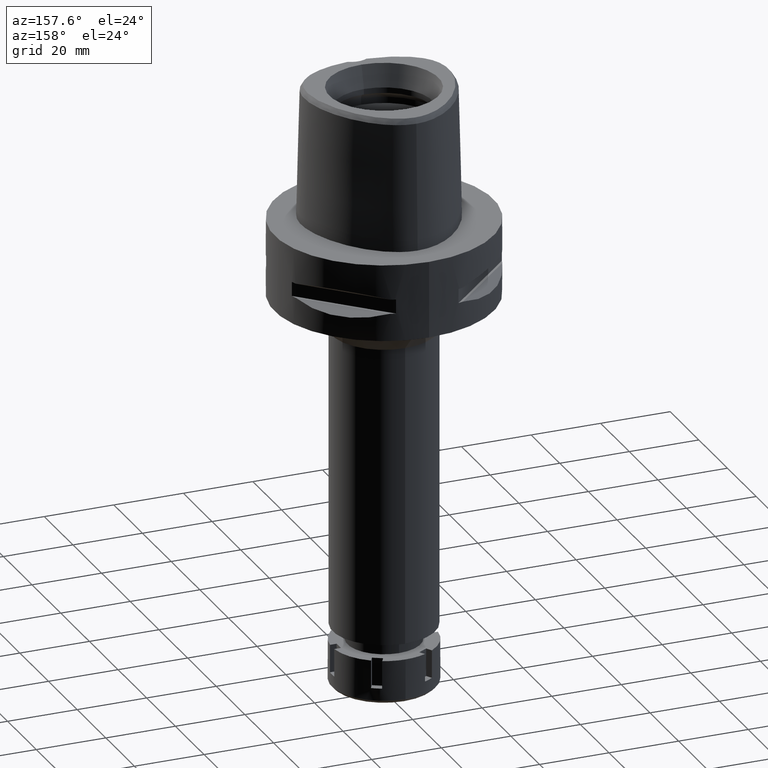
[diagram: clean part render]
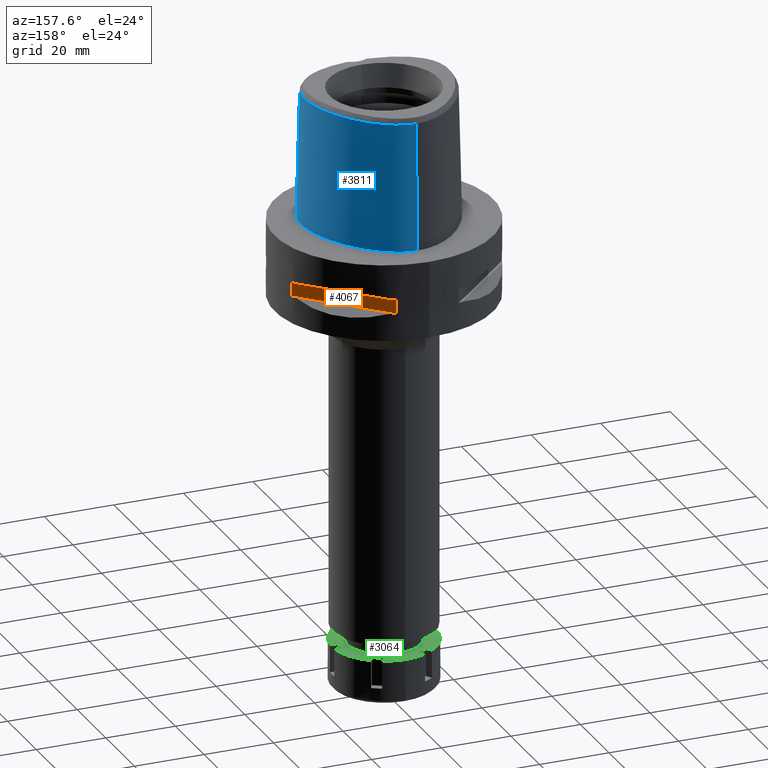
[diagram: same view with three faces highlighted in distinct colors, each labeled with its STEP entity id]
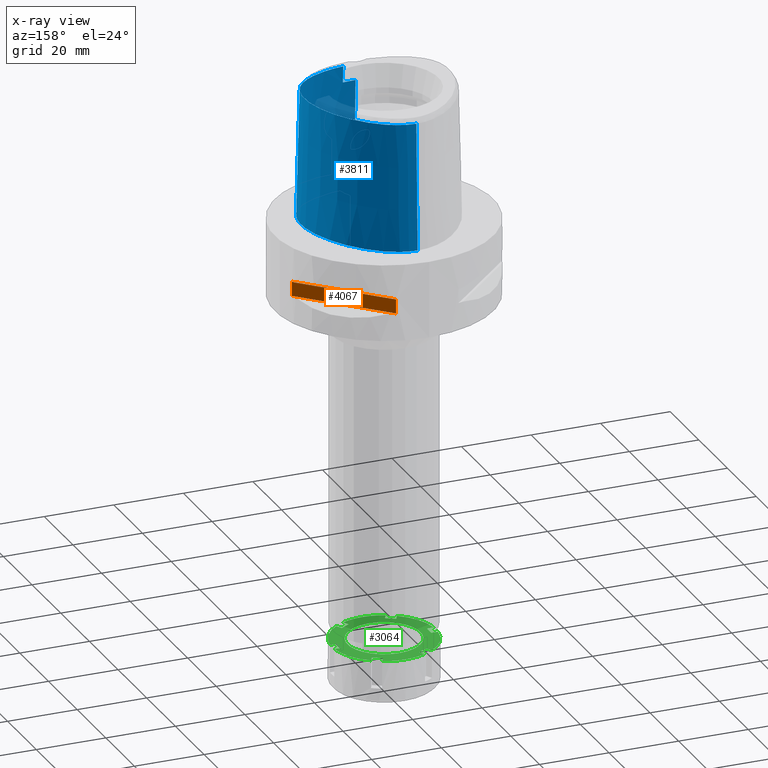
[diagram: x-ray of the same camera — body ghosted, the three highlighted faces saturated]
A machine part, auxiliary view with three faces highlighted in distinct colors.
The next image is the same camera in x-ray (body ghosted, the three faces saturated) — at least one of them is partly hidden behind the body in this view.
Their STEP definitions:

[orange] entity #4067 — the highlighted planar face has unit normal (-0.7071, -0.7071, 0).
#23 = EDGE_CURVE ( 'NONE', #1506, #1730, #2335, .T. ) ;
#52 = CARTESIAN_POINT ( 'NONE',  ( 5.444722215136000187, 33.72899346260000186, -9.950000000000001066 ) ) ;
#82 = CARTESIAN_POINT ( 'NONE',  ( 30.19251670572000279, 8.981198972019999616, -9.950000000000001066 ) ) ;
#102 = FACE_OUTER_BOUND ( 'NONE', #975, .T. ) ;
#261 = EDGE_CURVE ( 'NONE', #1730, #313, #1195, .T. ) ;
#313 = VERTEX_POINT ( 'NONE', #3755 ) ;
#329 = DIRECTION ( 'NONE',  ( 0.0000000000000000000, 0.0000000000000000000, 1.000000000000000000 ) ) ;
#378 = ORIENTED_EDGE ( 'NONE', *, *, #3391, .F. ) ;
#526 = VECTOR ( 'NONE', #4445, 1000.000000000000114 ) ;
#730 = VERTEX_POINT ( 'NONE', #82 ) ;
#843 = CARTESIAN_POINT ( 'NONE',  ( 30.19251670572000279, 8.981198972017999438, -9.950000000000001066 ) ) ;
#964 = EDGE_CURVE ( 'NONE', #730, #1506, #4099, .T. ) ;
#975 = EDGE_LOOP ( 'NONE', ( #378, #4939, #3832, #1363 ) ) ;
#1195 = LINE ( 'NONE', #3357, #3049 ) ;
#1211 = CARTESIAN_POINT ( 'NONE',  ( 30.19251670572000279, 8.981198972017999438, -9.950000000000001066 ) ) ;
#1363 = ORIENTED_EDGE ( 'NONE', *, *, #261, .T. ) ;
#1506 = VERTEX_POINT ( 'NONE', #4876 ) ;
#1631 = CARTESIAN_POINT ( 'NONE',  ( 8.981198972019999616, 30.19251670572000279, -14.05000000000000071 ) ) ;
#1730 = VERTEX_POINT ( 'NONE', #1631 ) ;
#1785 = DIRECTION ( 'NONE',  ( -0.7071067811865475727, -0.7071067811865475727, 0.0000000000000000000 ) ) ;
#2099 = DIRECTION ( 'NONE',  ( -0.7071067811865474617, 0.7071067811865474617, 0.0000000000000000000 ) ) ;
#2335 = LINE ( 'NONE', #4882, #526 ) ;
#3049 = VECTOR ( 'NONE', #329, 1000.000000000000000 ) ;
#3357 = CARTESIAN_POINT ( 'NONE',  ( 8.981198972017999438, 30.19251670572000279, -14.05000000000000071 ) ) ;
#3391 = EDGE_CURVE ( 'NONE', #730, #313, #3460, .T. ) ;
#3460 = LINE ( 'NONE', #843, #5004 ) ;
#3513 = DIRECTION ( 'NONE',  ( -0.7071067811865475727, 0.7071067811865475727, 0.0000000000000000000 ) ) ;
#3604 = VECTOR ( 'NONE', #4131, 1000.000000000000000 ) ;
#3755 = CARTESIAN_POINT ( 'NONE',  ( 8.981198972017999438, 30.19251670572000279, -9.950000000000001066 ) ) ;
#3832 = ORIENTED_EDGE ( 'NONE', *, *, #23, .T. ) ;
#4067 = ADVANCED_FACE ( 'NONE', ( #102 ), #4326, .F. ) ;
#4099 = LINE ( 'NONE', #1211, #3604 ) ;
#4105 = AXIS2_PLACEMENT_3D ( 'NONE', #52, #1785, #3513 ) ;
#4131 = DIRECTION ( 'NONE',  ( 0.0000000000000000000, 0.0000000000000000000, -1.000000000000000000 ) ) ;
#4326 = PLANE ( 'NONE',  #4105 ) ;
#4445 = DIRECTION ( 'NONE',  ( -0.7071067811865474617, 0.7071067811865474617, 0.0000000000000000000 ) ) ;
#4876 = CARTESIAN_POINT ( 'NONE',  ( 30.19251670572000279, 8.981198972017999438, -14.05000000000000071 ) ) ;
#4882 = CARTESIAN_POINT ( 'NONE',  ( 30.19251670572000279, 8.981198972017999438, -14.05000000000000071 ) ) ;
#4939 = ORIENTED_EDGE ( 'NONE', *, *, #964, .T. ) ;
#5004 = VECTOR ( 'NONE', #2099, 1000.000000000000114 ) ;

[blue] entity #3811 — the highlighted face is a freeform B-spline surface patch.
#96 = CARTESIAN_POINT ( 'NONE',  ( 0.2519697368789295400, -20.38876923348000147, 11.44999999999999929 ) ) ;
#111 = CARTESIAN_POINT ( 'NONE',  ( -0.6779734121400999847, -20.37023475736000222, 11.93048548580999935 ) ) ;
#120 = CARTESIAN_POINT ( 'NONE',  ( 2.714817435290670655, -20.25772213911185204, 12.49437854280265370 ) ) ;
#149 = CARTESIAN_POINT ( 'NONE',  ( 3.755991642143223785, -20.04748304465435993, 17.01495889863300448 ) ) ;
#169 = CARTESIAN_POINT ( 'NONE',  ( 6.288476565249999872, -20.00290563836000146, 11.93048548580999935 ) ) ;
#177 = CARTESIAN_POINT ( 'NONE',  ( 2.894506219204640907, -20.09690955887032970, 18.33274339089241778 ) ) ;
#178 = ORIENTED_EDGE ( 'NONE', *, *, #191, .T. ) ;
#185 = B_SPLINE_CURVE_WITH_KNOTS ( 'NONE', 3,
 ( #824, #1692, #1740, #410 ),
 .UNSPECIFIED., .F., .F.,
 ( 4, 4 ),
 ( 0.0000000000000000000, 1.000000000000000000 ),
 .UNSPECIFIED. ) ;
#191 = EDGE_CURVE ( 'NONE', #2306, #355, #5034, .T. ) ;
#196 = CARTESIAN_POINT ( 'NONE',  ( 2.041042029990999821E-08, -19.88004246002000031, 31.80000004972000127 ) ) ;
#199 = CARTESIAN_POINT ( 'NONE',  ( 19.40779762545000153, -12.64961922850999976, 11.93048548580999935 ) ) ;
#203 = CARTESIAN_POINT ( 'NONE',  ( 7.108589361577436705, 20.52412316394532255, 36.52186680739946212 ) ) ;
#206 = CARTESIAN_POINT ( 'NONE',  ( 3.437023659522963293, -20.17240543791107399, 13.35378256640227690 ) ) ;
#217 = CARTESIAN_POINT ( 'NONE',  ( -7.554234247045001308E-12, -20.67499999999999716, 5.943393925159998790E-14 ) ) ;
#232 = CARTESIAN_POINT ( 'NONE',  ( 11.13012652908999911, -18.61140108764999823, 11.93048548580999935 ) ) ;
#236 = CARTESIAN_POINT ( 'NONE',  ( 21.55524830777936529, -8.996025404796810676, -1.982772677002007239E-06 ) ) ;
#257 = CARTESIAN_POINT ( 'NONE',  ( -1.721500287542000227E-11, 22.56201468012000078, 36.52186680743999858 ) ) ;
#264 = CARTESIAN_POINT ( 'NONE',  ( 20.16779718557999601, 4.447573589357000756, 24.59140885849999947 ) ) ;
#274 = CARTESIAN_POINT ( 'NONE',  ( 4.050037399383525916, -20.04599349312467282, 15.75361975466950781 ) ) ;
#294 = CARTESIAN_POINT ( 'NONE',  ( 20.36546124962000093, -11.75800453467000040, -0.7304378868863000696 ) ) ;
#298 = CARTESIAN_POINT ( 'NONE',  ( 5.098437035785714500, 22.52602543684452385, -1.982772677002007239E-06 ) ) ;
#355 = VERTEX_POINT ( 'NONE', #440 ) ;
#359 = CARTESIAN_POINT ( 'NONE',  ( 4.563474861933999607E-11, 23.47499999999000053, 5.643633708511000158E-14 ) ) ;
#382 = CARTESIAN_POINT ( 'NONE',  ( 13.69241953403999901, 15.03666369974000006, 37.25233223120000048 ) ) ;
#405 = CARTESIAN_POINT ( 'NONE',  ( 2.438150570755999613, 22.68791623671000224, 24.59140885849999947 ) ) ;
#410 = CARTESIAN_POINT ( 'NONE',  ( 0.0000000000000000000, -20.18628283968999781, 19.55000000000000071 ) ) ;
#440 = CARTESIAN_POINT ( 'NONE',  ( 4.563474861933999607E-11, 23.47499999999000053, 5.643633708511000158E-14 ) ) ;
#452 = CARTESIAN_POINT ( 'NONE',  ( 2.758179676623465415, -20.25337897196574133, 12.53390918841284929 ) ) ;
#528 = CARTESIAN_POINT ( 'NONE',  ( 14.67337966880801758, -17.21410160570154702, -1.982772677002007239E-06 ) ) ;
#555 = FACE_OUTER_BOUND ( 'NONE', #2101, .T. ) ;
#558 = CARTESIAN_POINT ( 'NONE',  ( 18.56841068752517643, -14.16937991701447963, -1.982772677002007239E-06 ) ) ;
#563 = CARTESIAN_POINT ( 'NONE',  ( 1.222756221967138623, -20.36284569854003124, 11.63840396453693238 ) ) ;
#586 = CARTESIAN_POINT ( 'NONE',  ( 3.328551379740161575, -20.18727222456297099, 13.19186960083930593 ) ) ;
#621 = CARTESIAN_POINT ( 'NONE',  ( 4.026067555606401172, -20.04243146964171274, 16.01312629722099956 ) ) ;
#643 = CARTESIAN_POINT ( 'NONE',  ( 6.175998540514000545, -19.37631760546999971, 37.25233223120000048 ) ) ;
#647 = CARTESIAN_POINT ( 'NONE',  ( 0.7901461619515394164, 22.56201467849281173, 36.52186680739946212 ) ) ;
#651 = CARTESIAN_POINT ( 'NONE',  ( 2.520050460813455295, -20.11738995382102857, 18.67115940201987812 ) ) ;
#670 = CARTESIAN_POINT ( 'NONE',  ( 21.13154853792999788, -6.714587027493000626, 37.25233223120000048 ) ) ;
#673 = CARTESIAN_POINT ( 'NONE',  ( 22.05732879250008693, -6.847636725831053539, -1.982772677002007239E-06 ) ) ;
#692 = ORIENTED_EDGE ( 'NONE', *, *, #3813, .F. ) ;
#704 = CARTESIAN_POINT ( 'NONE',  ( 21.99640702107999957, -0.2778990153195000090, -0.7304378868863000696 ) ) ;
#708 = CARTESIAN_POINT ( 'NONE',  ( 14.22011350746535641, -16.41829354687963161, 36.52186680739946212 ) ) ;
#712 = CARTESIAN_POINT ( 'NONE',  ( 3.644654988697594522, -20.14185568960482087, 13.73169098995894544 ) ) ;
#734 = CARTESIAN_POINT ( 'NONE',  ( 1.886855603546999882, -20.71358920058000308, -0.7304378868863000696 ) ) ;
#760 = CARTESIAN_POINT ( 'NONE',  ( 14.21104783614000056, -16.40237677454000220, 37.25233223120000048 ) ) ;
#824 = CARTESIAN_POINT ( 'NONE',  ( 2.041042029990999821E-08, -19.88004246002000031, 31.80000004972000127 ) ) ;
#845 = CARTESIAN_POINT ( 'NONE',  ( 2.373090252712999781, 22.37624316056000140, 37.25233223120000048 ) ) ;
#883 = CARTESIAN_POINT ( 'NONE',  ( 1.488028627205765453, -20.35026873354180665, 11.73319909950361328 ) ) ;
#891 = CARTESIAN_POINT ( 'NONE',  ( 7.259695350511000456, 20.78233549784000189, 24.59140885849999947 ) ) ;
#907 = CARTESIAN_POINT ( 'NONE',  ( 3.042491796687317063, -20.22274507510631736, 12.82354767343091062 ) ) ;
#967 = EDGE_CURVE ( 'NONE', #5182, #2306, #2445, .T. ) ;
#986 = CARTESIAN_POINT ( 'NONE',  ( 11.23259758430813626, -18.89324223433851202, -1.982772677002007239E-06 ) ) ;
#995 = CARTESIAN_POINT ( 'NONE',  ( 1.946611601997332519, -20.32311006286645494, 11.93862046598738580 ) ) ;
#1020 = CARTESIAN_POINT ( 'NONE',  ( 2.871987183428478474, -20.09819914941969898, 18.35556622516750025 ) ) ;
#1039 = ORIENTED_EDGE ( 'NONE', *, *, #1512, .T. ) ;
#1046 = CARTESIAN_POINT ( 'NONE',  ( 1.675120599120962783, -20.15532933629874890, 19.18749499249619461 ) ) ;
#1071 = CARTESIAN_POINT ( 'NONE',  ( 19.15132510044000114, -12.46323140722999945, 24.59140885849999947 ) ) ;
#1082 = CARTESIAN_POINT ( 'NONE',  ( 1.027682876504597553, -20.17741712424493272, 19.45809765211911468 ) ) ;
#1098 = CARTESIAN_POINT ( 'NONE',  ( 20.07948471642000143, -10.22500054806000058, 37.25233223120000048 ) ) ;
#1102 = CARTESIAN_POINT ( 'NONE',  ( 20.09619608768924692, -10.23243839429691171, 36.52186680739946212 ) ) ;
#1107 = CARTESIAN_POINT ( 'NONE',  ( 1.613182323480255365, -20.15753140428501311, 19.21500890072887557 ) ) ;
#1127 = CARTESIAN_POINT ( 'NONE',  ( 21.26836734729999989, -8.910752225254999104, 11.93048548580999935 ) ) ;
#1131 = CARTESIAN_POINT ( 'NONE',  ( 21.07429999882485561, -0.4408303635841404056, 36.52186680739946212 ) ) ;
#1134 = CARTESIAN_POINT ( 'NONE',  ( 2.144427845708295255, -20.13626349860851761, 18.93810770242787456 ) ) ;
#1161 = CARTESIAN_POINT ( 'NONE',  ( 18.08416038769000167, 10.44089487473999966, -0.7304378868863000696 ) ) ;
#1165 = CARTESIAN_POINT ( 'NONE',  ( 13.70645019738733339, 15.04851265230653290, 36.52186680739946212 ) ) ;
#1192 = CARTESIAN_POINT ( 'NONE',  ( 22.26285557058000109, -4.100361500018000704, -0.7304378868863000696 ) ) ;
#1245 = CARTESIAN_POINT ( 'NONE',  ( 7.420053096645999879, 21.05635738262000345, 11.93048548580999935 ) ) ;
#1273 = CARTESIAN_POINT ( 'NONE',  ( 4.868968358529999207, 21.95285521843999987, 24.59140885849999947 ) ) ;
#1331 = CARTESIAN_POINT ( 'NONE',  ( 2.853007646188343127, -20.24348516854156443, 12.62547111175711301 ) ) ;
#1354 = CARTESIAN_POINT ( 'NONE',  ( 1.511996643077539559, -20.34900293593732101, 11.74281483622965361 ) ) ;
#1428 = CARTESIAN_POINT ( 'NONE',  ( -0.4561077450354999452, -20.69106756138000236, -0.7304378868863000696 ) ) ;
#1438 = CARTESIAN_POINT ( 'NONE',  ( 4.002664568992801541, -20.07397280446608789, 14.86850854358316631 ) ) ;
#1464 = CARTESIAN_POINT ( 'NONE',  ( 2.305334229541141422, -20.12831948498808998, 18.83048013503183427 ) ) ;
#1485 = CARTESIAN_POINT ( 'NONE',  ( 14.42198652399999936, 15.65278600588999858, -0.7304378868863000696 ) ) ;
#1493 = CARTESIAN_POINT ( 'NONE',  ( 3.128678969656458086, -20.08334280844291442, 18.07279819847896718 ) ) ;
#1512 = EDGE_CURVE ( 'NONE', #2955, #4812, #1759, .T. ) ;
#1514 = CARTESIAN_POINT ( 'NONE',  ( 11.23887130431000081, -18.91049776503999880, -0.7304378868863000696 ) ) ;
#1545 = ORIENTED_EDGE ( 'NONE', *, *, #5020, .F. ) ;
#1546 = CARTESIAN_POINT ( 'NONE',  ( 20.65879041440999941, -10.48283616408000007, 11.93048548580999935 ) ) ;
#1554 = CARTESIAN_POINT ( 'NONE',  ( 3.787426346252618092, -20.04607170149531825, 16.93525315949890242 ) ) ;
#1572 = CARTESIAN_POINT ( 'NONE',  ( 20.76670355404000290, 4.663413655761000420, -0.7304378868863000696 ) ) ;
#1581 = CARTESIAN_POINT ( 'NONE',  ( -9.438382639363001303E-13, -20.38876923348000147, 11.44999999999999929 ) ) ;
#1598 = CARTESIAN_POINT ( 'NONE',  ( -9.438382639363001303E-13, -20.38876923348000147, 11.44999999999999929 ) ) ;
#1606 = CARTESIAN_POINT ( 'NONE',  ( 20.09084467263999940, -11.59945457943000058, 11.93048548580999935 ) ) ;
#1610 = CARTESIAN_POINT ( 'NONE',  ( 7.300578979384598988, -19.07170738130932008, 36.52186680739946212 ) ) ;
#1686 = CARTESIAN_POINT ( 'NONE',  ( -0.4558512611212000021, 22.85344955503000364, 24.59140885849999947 ) ) ;
#1692 = CARTESIAN_POINT ( 'NONE',  ( 6.820927657154836449E-09, -19.98212988583318861, 27.71666688228307507 ) ) ;
#1736 = CARTESIAN_POINT ( 'NONE',  ( 10.75753574149999814, 19.18839676150999907, -0.7304378868863000696 ) ) ;
#1740 = CARTESIAN_POINT ( 'NONE',  ( 6.840928000218181351E-09, -20.08420636276216698, 23.63333344114142776 ) ) ;
#1759 = B_SPLINE_CURVE_WITH_KNOTS ( 'NONE', 3,
 ( #2329, #4076, #4046, #196 ),
 .UNSPECIFIED., .F., .F.,
 ( 4, 4 ),
 ( 0.0000000000000000000, 1.000000000000000000 ),
 .UNSPECIFIED. ) ;
#1830 = CARTESIAN_POINT ( 'NONE',  ( -9.438382639363001303E-13, -20.38876923348000147, 11.44999999999999929 ) ) ;
#1890 = CARTESIAN_POINT ( 'NONE',  ( 3.686910441658101334, -20.13511169296123171, 13.82359477180977514 ) ) ;
#1892 = B_SPLINE_CURVE_WITH_KNOTS ( 'NONE', 3,
 ( #3214, #647, #2364, #3670, #203, #5392, #1165, #1940, #5363, #1131, #3756, #3296, #4999, #1102, #2819, #2845, #4564, #5445, #708, #2881, #1610, #2618, #3840 ),
 .UNSPECIFIED., .F., .F.,
 ( 4, 1, 1, 1, 1, 1, 1, 1, 1, 1, 1, 1, 1, 1, 1, 1, 1, 1, 1, 1, 4 ),
 ( 0.0000000000000000000, 0.04382683003322091625, 0.08765366006602096083, 0.1314804900989263448, 0.1753073201318317287, 0.2629609801974319150, 0.3506146402631374892, 0.4382683003289481460, 0.5259219603945484156, 0.5697487904274537440, 0.6135756204602539343, 0.6574024504931592627, 0.6793158655095592469, 0.7012292805259594530, 0.7231426955423594372, 0.7450561105587595323, 0.7888829405916648607, 0.8327097706245703002, 0.8765366006573702684, 0.9641902607230863342, 1.000000000000000000 ),
 .UNSPECIFIED. ) ;
#1909 = CARTESIAN_POINT ( 'NONE',  ( -0.4439347079955999753, -19.74161805981999862, 37.25233223120000048 ) ) ;
#1917 = CARTESIAN_POINT ( 'NONE',  ( 2.880386059684365119, -20.09771851976561408, 18.34709984349601442 ) ) ;
#1935 = CARTESIAN_POINT ( 'NONE',  ( 6.344715577618000424, -20.31619965479999834, -0.7304378868863000696 ) ) ;
#1940 = CARTESIAN_POINT ( 'NONE',  ( 17.27359236349095539, 9.972912859139521302, 36.52186680739946212 ) ) ;
#1945 = CARTESIAN_POINT ( 'NONE',  ( 3.765593220700957033, -20.04704214534180906, 16.99108095766526105 ) ) ;
#1969 = CARTESIAN_POINT ( 'NONE',  ( 18.58171406964000028, -14.18198046908000087, -0.7304378868863000696 ) ) ;
#1996 = CARTESIAN_POINT ( 'NONE',  ( 19.86834400134999967, 4.339653556154000391, 37.25233223120000048 ) ) ;
#2024 = CARTESIAN_POINT ( 'NONE',  ( 17.53318563715999900, 10.12278921723000025, 24.59140885849999947 ) ) ;
#2083 = CARTESIAN_POINT ( 'NONE',  ( 10.14358053404999893, 18.45723391293999782, 37.25233223120000048 ) ) ;
#2101 = EDGE_LOOP ( 'NONE', ( #4255, #4551, #692, #1039, #4977, #1545, #4229, #178 ) ) ;
#2105 = CARTESIAN_POINT ( 'NONE',  ( 3.704239288984441103, -19.64128042389065598, 33.37395322129999897 ) ) ;
#2130 = CARTESIAN_POINT ( 'NONE',  ( -0.4431573288724999782, 22.53713844853000126, 37.25233223120000048 ) ) ;
#2176 = CARTESIAN_POINT ( 'NONE',  ( 2.808608589973276892, -20.24816661311868771, 12.58196638594417927 ) ) ;
#2282 = CARTESIAN_POINT ( 'NONE',  ( 2.570081009083879486, -20.27170108689808714, 12.36908902939326715 ) ) ;
#2306 = VERTEX_POINT ( 'NONE', #217 ) ;
#2313 = CARTESIAN_POINT ( 'NONE',  ( 3.727121516744339669, -20.12854809717472548, 13.91496385434323102 ) ) ;
#2329 = CARTESIAN_POINT ( 'NONE',  ( 3.736696120837999402, -19.67778323291999953, 31.80000004972999861 ) ) ;
#2343 = CARTESIAN_POINT ( 'NONE',  ( 3.860403433738069712, -20.04330035600995785, 16.72651338064444104 ) ) ;
#2360 = CARTESIAN_POINT ( 'NONE',  ( 16.57726025046999752, -15.19304450529000050, 24.59140885849999947 ) ) ;
#2364 = CARTESIAN_POINT ( 'NONE',  ( 2.376843874103672150, 22.39422497744283191, 36.52186680739946212 ) ) ;
#2367 = CARTESIAN_POINT ( 'NONE',  ( 3.504989208434857950, -20.16277707621795656, 13.46647361527179854 ) ) ;
#2388 = CARTESIAN_POINT ( 'NONE',  ( 11.02138175388000008, -18.31230441026000122, 24.59140885849999947 ) ) ;
#2399 = CARTESIAN_POINT ( 'NONE',  ( 3.714384130523797456, -20.13065104887485290, 13.88538127571118785 ) ) ;
#2423 = CARTESIAN_POINT ( 'NONE',  ( 21.68301093871999896, -0.3332744164474999993, 11.93048548580999935 ) ) ;
#2432 = CARTESIAN_POINT ( 'NONE',  ( 1.583085234474576941, -20.15857747892415830, 19.22794739783265427 ) ) ;
#2445 = LINE ( 'NONE', #1598, #2612 ) ;
#2452 = CARTESIAN_POINT ( 'NONE',  ( 1.853272112111999936, -20.08023966506999969, 24.59140885849999947 ) ) ;
#2476 = CARTESIAN_POINT ( 'NONE',  ( 21.31039798484999892, -4.105938499058999547, 37.25233223120000048 ) ) ;
#2503 = VECTOR ( 'NONE', #5213, 999.9999999999998863 ) ;
#2511 = CARTESIAN_POINT ( 'NONE',  ( 19.64947369879755712, -12.82525393544401027, -1.982772677002007239E-06 ) ) ;
#2536 = CARTESIAN_POINT ( 'NONE',  ( 10.34823226986999956, 18.70095486246000149, 24.59140885849999947 ) ) ;
#2561 = CARTESIAN_POINT ( 'NONE',  ( 0.5826623201546999864, 22.88447422702000011, 24.59140885849999947 ) ) ;
#2604 = CARTESIAN_POINT ( 'NONE',  ( 2.396851615580248840, -20.28741283536881213, 12.23208293719574691 ) ) ;
#2612 = VECTOR ( 'NONE', #3320, 1000.000000000000114 ) ;
#2618 = CARTESIAN_POINT ( 'NONE',  ( 4.467522181836583783, -19.48130276147515616, 36.52186680739946212 ) ) ;
#2629 = CARTESIAN_POINT ( 'NONE',  ( 3.169150985202763504, -20.20760989054315360, 12.97742286930309419 ) ) ;
#2675 = CARTESIAN_POINT ( 'NONE',  ( 2.113823676014076280, -20.67500004956444926, -1.982772677002007239E-06 ) ) ;
#2731 = CARTESIAN_POINT ( 'NONE',  ( 1.767192251251786139, -20.15197845540285826, 19.14519926632055302 ) ) ;
#2759 = EDGE_CURVE ( 'NONE', #3212, #4572, #1892, .T. ) ;
#2764 = CARTESIAN_POINT ( 'NONE',  ( 3.003234361615559678, -20.09064592609334454, 18.21745801850492086 ) ) ;
#2782 = CARTESIAN_POINT ( 'NONE',  ( 20.65947724667000429, -8.729764282430000577, 37.25233223120000048 ) ) ;
#2795 = CARTESIAN_POINT ( 'NONE',  ( 4.049643110176807781, -20.05399160878188169, 15.43795828973407680 ) ) ;
#2798 = EDGE_CURVE ( 'NONE', #4812, #3361, #185, .T. ) ;
#2814 = CARTESIAN_POINT ( 'NONE',  ( 20.96392229697999809, -8.820258253843000773, 24.59140885849999947 ) ) ;
#2819 = CARTESIAN_POINT ( 'NONE',  ( 19.55745538001470152, -11.29150212658102959, 36.52186680739946212 ) ) ;
#2824 = CARTESIAN_POINT ( 'NONE',  ( 3.749536200694282506, -20.04778253193092397, 17.03086640830614229 ) ) ;
#2841 = CARTESIAN_POINT ( 'NONE',  ( 21.44619279071000051, -6.759806530403999147, 24.59140885849999947 ) ) ;
#2844 = CARTESIAN_POINT ( 'NONE',  ( 20.34961802856998148, -11.74885744669750665, -1.982772677002007239E-06 ) ) ;
#2845 = CARTESIAN_POINT ( 'NONE',  ( 18.90964962508263625, -12.28759713487958294, 36.52186680739946212 ) ) ;
#2851 = CARTESIAN_POINT ( 'NONE',  ( 2.032175996666464091, -20.14130468680087560, 19.00576489869021302 ) ) ;
#2875 = CARTESIAN_POINT ( 'NONE',  ( 1.870063857829999954, -20.39691443282999828, 11.93048548580999935 ) ) ;
#2881 = CARTESIAN_POINT ( 'NONE',  ( 10.91891095221612851, -18.03046396093296266, 36.52186680739946212 ) ) ;
#2905 = CARTESIAN_POINT ( 'NONE',  ( 14.68244497377000002, -17.23001773481000143, -0.7304378868863000696 ) ) ;
#2955 = VERTEX_POINT ( 'NONE', #4257 ) ;
#2961 = CARTESIAN_POINT ( 'NONE',  ( 0.6155340743096999745, 23.51883498273999962, -0.7304378868863000696 ) ) ;
#2987 = CARTESIAN_POINT ( 'NONE',  ( 4.987110638285000341, 22.24795273284000174, 11.93048548580999935 ) ) ;
#3048 = CARTESIAN_POINT ( 'NONE',  ( 2.282207029746515126, -20.29700151028869470, 12.15162930637090177 ) ) ;
#3109 = LINE ( 'NONE', #4816, #2503 ) ;
#3162 = CARTESIAN_POINT ( 'NONE',  ( 3.346444325172779788, -20.07049246070072002, 17.78503332969415140 ) ) ;
#3190 = CARTESIAN_POINT ( 'NONE',  ( 3.599362307492320223, -20.14875877779048352, 13.64217581387225842 ) ) ;
#3207 = CARTESIAN_POINT ( 'NONE',  ( 14.17879752734999954, 15.44741190383999907, 11.93048548580999935 ) ) ;
#3212 = VERTEX_POINT ( 'NONE', #257 ) ;
#3214 = CARTESIAN_POINT ( 'NONE',  ( -1.721500287542000227E-11, 22.56201468012000078, 36.52186680743999858 ) ) ;
#3223 = CARTESIAN_POINT ( 'NONE',  ( 2.963657114686568228, -20.09293563006363925, 18.26079471621887507 ) ) ;
#3240 = CARTESIAN_POINT ( 'NONE',  ( 19.81622809565999788, -11.44090462417999987, 24.59140885849999947 ) ) ;
#3264 = CARTESIAN_POINT ( 'NONE',  ( 20.36913756540999998, -10.35391835607000033, 24.59140885849999947 ) ) ;
#3267 = CARTESIAN_POINT ( 'NONE',  ( 0.8548392458207098032, 23.47500004957299424, -1.982772677002007239E-06 ) ) ;
#3272 = CARTESIAN_POINT ( 'NONE',  ( 3.664274183418350095, -20.05181531545110474, 17.23726368441675305 ) ) ;
#3292 = CARTESIAN_POINT ( 'NONE',  ( 20.46725036981000301, 4.555493622559000144, 11.93048548580999935 ) ) ;
#3296 = CARTESIAN_POINT ( 'NONE',  ( 21.14970177531148110, -6.717195943318931661, 36.52186680739946212 ) ) ;
#3320 = DIRECTION ( 'NONE',  ( -5.771468541057828828E-13, -0.02499051295389925070, -0.9996876883618708298 ) ) ;
#3325 = CARTESIAN_POINT ( 'NONE',  ( 17.88993632181999871, -13.52674998306000020, 37.25233223120000048 ) ) ;
#3361 = VERTEX_POINT ( 'NONE', #3690 ) ;
#3380 = CARTESIAN_POINT ( 'NONE',  ( 7.099337604376000144, 20.50831361306999767, 37.25233223120000048 ) ) ;
#3415 = CARTESIAN_POINT ( 'NONE',  ( 4.750826078775999939, 21.65775770404999889, 37.25233223120000048 ) ) ;
#3463 = CARTESIAN_POINT ( 'NONE',  ( 3.637738219117000238, -19.56971420299000286, 36.52185956443999970 ) ) ;
#3475 = CARTESIAN_POINT ( 'NONE',  ( 1.319600680390206060, -20.35863312411228065, 11.66994494017185602 ) ) ;
#3504 = CARTESIAN_POINT ( 'NONE',  ( 2.830175095661752405, -20.24590160278925310, 12.60298252333814339 ) ) ;
#3559 = CARTESIAN_POINT ( 'NONE',  ( 1.028701314430662928, -20.37062275902202302, 11.58049741886265238 ) ) ;
#3582 = CARTESIAN_POINT ( 'NONE',  ( -0.6718836805590999717, -20.05378834563000012, 24.59140885849999947 ) ) ;
#3618 = CARTESIAN_POINT ( 'NONE',  ( 3.745459306425695800, -20.04797394566474722, 17.04080371184679166 ) ) ;
#3635 = CARTESIAN_POINT ( 'NONE',  ( 20.94844326341000240, -10.61175397210000071, -0.7304378868863000696 ) ) ;
#3640 = B_SPLINE_CURVE_WITH_KNOTS ( 'NONE', 3,
 ( #4253, #2105, #4643, #3463 ),
 .UNSPECIFIED., .F., .F.,
 ( 4, 4 ),
 ( 0.0000000000000000000, 1.000000000000000000 ),
 .UNSPECIFIED. ) ;
#3644 = CARTESIAN_POINT ( 'NONE',  ( 3.828814954410813876, -20.04436409866677948, 16.82317999465184144 ) ) ;
#3664 = CARTESIAN_POINT ( 'NONE',  ( 1.836480366395000008, -19.76356489732000199, 37.25233223120000048 ) ) ;
#3669 = CARTESIAN_POINT ( 'NONE',  ( -7.554234247045001308E-12, -20.67499999999999716, 5.943393925159998790E-14 ) ) ;
#3670 = CARTESIAN_POINT ( 'NONE',  ( 4.757642236484951326, 21.67478320247267476, 36.52186680739946212 ) ) ;
#3677 = CARTESIAN_POINT ( 'NONE',  ( 1.856701250897948796, -20.14848423775751129, 19.09993988373318885 ) ) ;
#3690 = CARTESIAN_POINT ( 'NONE',  ( 0.0000000000000000000, -20.18628283968999781, 19.55000000000000071 ) ) ;
#3696 = CARTESIAN_POINT ( 'NONE',  ( 18.35112148704000035, -13.96357030707000035, 11.93048548580999935 ) ) ;
#3709 = CARTESIAN_POINT ( 'NONE',  ( 4.048221369819505533, -20.05572751809214438, 15.37605551826763239 ) ) ;
#3724 = CARTESIAN_POINT ( 'NONE',  ( 14.36818021534999978, -16.67825709462999839, 24.59140885849999947 ) ) ;
#3734 = B_SPLINE_SURFACE_WITH_KNOTS ( 'NONE', 3, 3, ( 
 ( #3991, #111, #3582, #5276 ),
 ( #1428, #4856, #4109, #1909 ),
 ( #734, #2875, #2452, #3664 ),
 ( #1935, #169, #5329, #643 ),
 ( #1514, #232, #2388, #5439 ),
 ( #2905, #4171, #3724, #760 ),
 ( #3752, #5359, #2360, #4911 ),
 ( #1969, #3696, #4078, #3325 ),
 ( #5388, #199, #1071, #5413 ),
 ( #294, #1606, #3240, #4941 ),
 ( #3635, #1546, #3264, #1098 ),
 ( #4969, #1127, #2814, #2782 ),
 ( #5028, #4995, #2841, #670 ),
 ( #1192, #4529, #4558, #2476 ),
 ( #704, #2423, #4140, #4498 ),
 ( #1572, #3292, #264, #1996 ),
 ( #1161, #4591, #2024, #4618 ),
 ( #1485, #3207, #3812, #382 ),
 ( #1736, #3784, #2536, #2083 ),
 ( #4696, #1245, #891, #3380 ),
 ( #5114, #2987, #1273, #3415 ),
 ( #4302, #4196, #405, #845 ),
 ( #2961, #3883, #2561, #4274 ),
 ( #5521, #5470, #1686, #2130 ),
 ( #5055, #3861, #5552, #5497 ) ),
 .UNSPECIFIED., .F., .F., .F.,
 ( 4, 1, 1, 1, 1, 1, 1, 1, 1, 1, 1, 1, 1, 1, 1, 1, 1, 1, 1, 1, 1, 1, 4 ),
 ( 4, 4 ),
 ( -0.008985960173574000093, 0.0000000000000000000, 0.08333333333339000559, 0.1666666666667000196, 0.2083333333333000081, 0.2500000000000000000, 0.2916666666666999919, 0.3125000000000000000, 0.3333333333333000081, 0.3541666666666000163, 0.3749999999998999689, 0.4166666666666000163, 0.4583333333332000326, 0.4999999999998999689, 0.5833333333331000015, 0.6666666666664999852, 0.7499999999998000488, 0.8333333333329999704, 0.8749999999997000177, 0.9166666666664000651, 0.9583333333329999704, 1.000000000000000000, 1.011710456763000199 ),
 ( -4.254415840453999687E-09, 1.000000216975000189 ),
 .UNSPECIFIED. ) ;
#3752 = CARTESIAN_POINT ( 'NONE',  ( 16.97022731431999887, -15.69280483524000047, -0.7304378868863000696 ) ) ;
#3756 = CARTESIAN_POINT ( 'NONE',  ( 21.32871516740011586, -4.105831245034224253, 36.52186680739946212 ) ) ;
#3784 = CARTESIAN_POINT ( 'NONE',  ( 10.55288400567999929, 18.94467581198999540, 11.93048548580999935 ) ) ;
#3811 = ADVANCED_FACE ( 'NONE', ( #555 ), #3734, .T. ) ;
#3812 = CARTESIAN_POINT ( 'NONE',  ( 13.93560853070000150, 15.24203780179000134, 24.59140885849999947 ) ) ;
#3813 = EDGE_CURVE ( 'NONE', #2955, #4572, #3640, .T. ) ;
#3816 = CARTESIAN_POINT ( 'NONE',  ( 20.93173256748282185, -10.60431642644196515, -1.982772677002007239E-06 ) ) ;
#3840 = CARTESIAN_POINT ( 'NONE',  ( 3.637738219117000238, -19.56971420299000286, 36.52185956443999970 ) ) ;
#3861 = CARTESIAN_POINT ( 'NONE',  ( -0.7025952812408999826, 23.15559737518000105, 11.93048548580999935 ) ) ;
#3883 = CARTESIAN_POINT ( 'NONE',  ( 0.5990981972322000360, 23.20165460487999809, 11.93048548580999935 ) ) ;
#3894 = CARTESIAN_POINT ( 'NONE',  ( 2.844541275134908176, -20.24438467540247544, 12.61708719066252193 ) ) ;
#3914 = CARTESIAN_POINT ( 'NONE',  ( 1.734379789055714660, -20.33697246834248418, 11.83436638252596573 ) ) ;
#3941 = CARTESIAN_POINT ( 'NONE',  ( 3.637738219117000238, -19.56971420299000286, 36.52185956443999970 ) ) ;
#3991 = CARTESIAN_POINT ( 'NONE',  ( -0.6840631437212000288, -20.68668116909000076, -0.7304378868863000696 ) ) ;
#4000 = CARTESIAN_POINT ( 'NONE',  ( 2.628027080903245327, -20.26624238139268286, 12.41747670475429111 ) ) ;
#4030 = CARTESIAN_POINT ( 'NONE',  ( 4.020738798819311732, -20.06858537622277083, 14.99755720161237349 ) ) ;
#4046 = CARTESIAN_POINT ( 'NONE',  ( 1.251533272182160372, -19.88005341395237835, 31.80000012137768906 ) ) ;
#4059 = CARTESIAN_POINT ( 'NONE',  ( 3.918456791373615022, -20.04170609324362218, 16.53266420031105000 ) ) ;
#4064 = EDGE_CURVE ( 'NONE', #3212, #355, #3109, .T. ) ;
#4076 = CARTESIAN_POINT ( 'NONE',  ( 2.503154195451533948, -19.81241979350761895, 31.80000012137768906 ) ) ;
#4078 = CARTESIAN_POINT ( 'NONE',  ( 18.12052890442999953, -13.74516014507000072, 24.59140885849999947 ) ) ;
#4087 = CARTESIAN_POINT ( 'NONE',  ( 2.673904828757554863, -20.10928166633813063, 18.54472627324816969 ) ) ;
#4109 = CARTESIAN_POINT ( 'NONE',  ( -0.4479923870088999838, -20.05810122700999898, 24.59140885849999947 ) ) ;
#4114 = CARTESIAN_POINT ( 'NONE',  ( 18.06826692841348247, 10.43171877491243471, -1.982772677002007239E-06 ) ) ;
#4121 = CARTESIAN_POINT ( 'NONE',  ( 2.467729343595080227, -20.12009802658496227, 18.71204267792693088 ) ) ;
#4140 = CARTESIAN_POINT ( 'NONE',  ( 21.36961485635000102, -0.3886498175754999895, 24.59140885849999947 ) ) ;
#4153 = CARTESIAN_POINT ( 'NONE',  ( 4.045013207771214425, -20.05847505277925080, 15.28275217491512628 ) ) ;
#4171 = CARTESIAN_POINT ( 'NONE',  ( 14.52531259456000079, -16.95413741471999813, 11.93048548580999935 ) ) ;
#4196 = CARTESIAN_POINT ( 'NONE',  ( 2.503210888799999978, 22.99958931286000308, 11.93048548580999935 ) ) ;
#4199 = CARTESIAN_POINT ( 'NONE',  ( 7.571159459464015029, 21.31457035541280121, -1.982772677002007239E-06 ) ) ;
#4229 = ORIENTED_EDGE ( 'NONE', *, *, #967, .T. ) ;
#4230 = CARTESIAN_POINT ( 'NONE',  ( 10.74572894263694600, 19.17433597566731152, -1.982772677002007239E-06 ) ) ;
#4253 = CARTESIAN_POINT ( 'NONE',  ( 3.736696120837999402, -19.67778323291999953, 31.80000004972999861 ) ) ;
#4255 = ORIENTED_EDGE ( 'NONE', *, *, #4064, .F. ) ;
#4257 = CARTESIAN_POINT ( 'NONE',  ( 3.736696120837999402, -19.67778323291999953, 31.80000004972999861 ) ) ;
#4274 = CARTESIAN_POINT ( 'NONE',  ( 0.5662264430772000479, 22.56729384915999859, 37.25233223120000048 ) ) ;
#4302 = CARTESIAN_POINT ( 'NONE',  ( 2.568271206843000254, 23.31126238901000036, -0.7304378868863000696 ) ) ;
#4318 = CARTESIAN_POINT ( 'NONE',  ( 1.432005274344154699, -20.35315137661976337, 11.71134280122710436 ) ) ;
#4341 = CARTESIAN_POINT ( 'NONE',  ( 3.210108431848788246, -20.20255916619496617, 13.02975361490030259 ) ) ;
#4393 = CARTESIAN_POINT ( 'NONE',  ( 6.341471028019424416, -20.29812504906901793, -1.982772677002007662E-06 ) ) ;
#4420 = CARTESIAN_POINT ( 'NONE',  ( 16.95889175670987115, -15.67838871100898857, -1.982772677002007239E-06 ) ) ;
#4450 = CARTESIAN_POINT ( 'NONE',  ( 0.4948470747602104480, -20.18628283969000492, 19.54999999999999716 ) ) ;
#4480 = CARTESIAN_POINT ( 'NONE',  ( 2.915545606163055581, -20.09570297646319048, 18.31119129212001440 ) ) ;
#4498 = CARTESIAN_POINT ( 'NONE',  ( 21.05621877398999686, -0.4440252187034999798, 37.25233223120000048 ) ) ;
#4508 = CARTESIAN_POINT ( 'NONE',  ( 3.950323019400650004, -20.04135421479582746, 16.40274729697456735 ) ) ;
#4529 = CARTESIAN_POINT ( 'NONE',  ( 21.94536970867000036, -4.102220499699000378, 11.93048548580999935 ) ) ;
#4551 = ORIENTED_EDGE ( 'NONE', *, *, #2759, .T. ) ;
#4558 = CARTESIAN_POINT ( 'NONE',  ( 21.62788384675999964, -4.104079499378999962, 24.59140885849999947 ) ) ;
#4564 = CARTESIAN_POINT ( 'NONE',  ( 17.90324024157554206, -13.53935104436165027, 36.52186680739946212 ) ) ;
#4571 = CARTESIAN_POINT ( 'NONE',  ( 3.289399613304719860, -20.19244639184434931, 13.13636645578982254 ) ) ;
#4572 = VERTEX_POINT ( 'NONE', #3941 ) ;
#4591 = CARTESIAN_POINT ( 'NONE',  ( 17.80867301242000167, 10.28184204597999951, 11.93048548580999935 ) ) ;
#4595 = CARTESIAN_POINT ( 'NONE',  ( 22.24453912826682611, -4.100468749708466198, -1.982772677002007239E-06 ) ) ;
#4618 = CARTESIAN_POINT ( 'NONE',  ( 17.25769826189999989, 9.963736388470998406, 37.25233223120000048 ) ) ;
#4643 = CARTESIAN_POINT ( 'NONE',  ( 3.671249151389730514, -19.60525176641679579, 34.94790639287000289 ) ) ;
#4696 = CARTESIAN_POINT ( 'NONE',  ( 7.580410842782000280, 21.33037926739000056, -0.7304378868863000696 ) ) ;
#4733 = CARTESIAN_POINT ( 'NONE',  ( 0.5100579658809085704, -20.38531276215466903, 11.47358267918780861 ) ) ;
#4759 = CARTESIAN_POINT ( 'NONE',  ( 2.953000302320534676, -20.23281254683990582, 12.72512295699132778 ) ) ;
#4812 = VERTEX_POINT ( 'NONE', #5012 ) ;
#4816 = CARTESIAN_POINT ( 'NONE',  ( -1.721500287542000227E-11, 22.56201468012000078, 36.52186680743999858 ) ) ;
#4835 = CARTESIAN_POINT ( 'NONE',  ( 0.8988479711756207635, -20.37494334817867525, 11.54879813003850408 ) ) ;
#4856 = CARTESIAN_POINT ( 'NONE',  ( -0.4520500660222000477, -20.37458439419999934, 11.93048548580999935 ) ) ;
#4862 = CARTESIAN_POINT ( 'NONE',  ( 4.049995275655163596, -20.05320010482691373, 15.46762644421691846 ) ) ;
#4887 = CARTESIAN_POINT ( 'NONE',  ( 2.361140904827191189, -20.12552479265212924, 18.79118822093420604 ) ) ;
#4911 = CARTESIAN_POINT ( 'NONE',  ( 16.38077671853999817, -14.94316434031999918, 37.25233223120000048 ) ) ;
#4922 = CARTESIAN_POINT ( 'NONE',  ( 2.772326413961004654, -20.10389738242811219, 18.45539022241095495 ) ) ;
#4941 = CARTESIAN_POINT ( 'NONE',  ( 19.54161151868000346, -11.28235466894000005, 37.25233223120000048 ) ) ;
#4952 = CARTESIAN_POINT ( 'NONE',  ( 3.850246712570780883, -20.10780614032471547, 14.21172176769477424 ) ) ;
#4969 = CARTESIAN_POINT ( 'NONE',  ( 21.57281239761999814, -9.001246196667999300, -0.7304378868863000696 ) ) ;
#4976 = CARTESIAN_POINT ( 'NONE',  ( 3.265869583385795583, -20.07528142228585111, 17.89964299956977456 ) ) ;
#4977 = ORIENTED_EDGE ( 'NONE', *, *, #2798, .T. ) ;
#4995 = CARTESIAN_POINT ( 'NONE',  ( 21.76083704349000314, -6.805026033315000333, 11.93048548580999935 ) ) ;
#4998 = CARTESIAN_POINT ( 'NONE',  ( 21.97832652694652822, -0.2810937413278584707, -1.982772677002007239E-06 ) ) ;
#4999 = CARTESIAN_POINT ( 'NONE',  ( 20.67704204634159026, -8.734985285293197066, 36.52186680739946212 ) ) ;
#5012 = CARTESIAN_POINT ( 'NONE',  ( 2.041042029990999821E-08, -19.88004246002000031, 31.80000004972000127 ) ) ;
#5018 = B_SPLINE_CURVE_WITH_KNOTS ( 'NONE', 3,
 ( #1830, #96, #4733, #4835, #3559, #563, #3475, #4318, #883, #1354, #5253, #5176, #3914, #995, #3048, #2604, #2282, #4000, #120, #452, #2176, #3504, #3894, #1331, #4759, #907, #2629, #4341, #4571, #586, #206, #2367, #3190, #712, #1890, #2399, #2313, #4952, #5398, #1438, #4030, #5281, #4153, #3709, #2795, #4862, #274, #621, #4508, #4059, #2343, #3644, #1554, #1945, #149, #2824, #3618, #3272, #5337, #3162, #4976, #1493, #5310, #2764, #3223, #4480, #177, #1917, #1020, #4922, #4087, #651, #4121, #4887, #1464, #1134, #2851, #3677, #2731, #1046, #1107, #2432, #1082, #4450, #5372 ),
 .UNSPECIFIED., .F., .F.,
 ( 4, 2, 2, 1, 1, 1, 2, 2, 2, 2, 2, 1, 1, 2, 2, 2, 2, 2, 2, 1, 2, 2, 2, 2, 1, 2, 2, 2, 2, 1, 1, 1, 2, 2, 2, 2, 2, 1, 1, 2, 2, 2, 2, 2, 2, 1, 2, 2, 4 ),
 ( 0.0000000000000000000, 0.06249999999998996636, 0.09374999999998492872, 0.1093749999999823752, 0.1171874999999810985, 0.1210937499999804878, 0.1230468749999801825, 0.1249999999999798633, 0.1874999999999693578, 0.2187499999999640843, 0.2343749999999613642, 0.2421874999999600320, 0.2460937499999592271, 0.2480468749999588940, 0.2499999999999585887, 0.2812499999999544253, 0.2968749999999520939, 0.3124999999999498179, 0.3437499999999456546, 0.3593749999999433786, 0.3671874999999419908, 0.3749999999999406031, 0.4374999999999272804, 0.4687499999999203970, 0.4843749999999169553, 0.4921874999999152900, 0.4999999999999135691, 0.5624999999998985256, 0.5937499999998908651, 0.6093749999998872013, 0.6171874999998849809, 0.6210937499998842037, 0.6230468749998842037, 0.6249999999998842037, 0.6874999999998951949, 0.7187499999999003020, 0.7343749999999027445, 0.7421874999999042988, 0.7460937499999050759, 0.7480468749999054090, 0.7499999999999057421, 0.7812499999999168443, 0.7968749999999225064, 0.8124999999999280575, 0.8437499999999392708, 0.8593749999999448219, 0.8671874999999477085, 0.8749999999999505951, 1.000000000000000000 ),
 .UNSPECIFIED. ) ;
#5020 = EDGE_CURVE ( 'NONE', #5182, #3361, #5018, .T. ) ;
#5028 = CARTESIAN_POINT ( 'NONE',  ( 22.07548129626999867, -6.850245536224999654, -0.7304378868863000696 ) ) ;
#5034 = B_SPLINE_CURVE_WITH_KNOTS ( 'NONE', 3,
 ( #3669, #2675, #4393, #986, #528, #4420, #558, #2511, #2844, #3816, #236, #673, #4595, #4998, #5391, #4114, #5500, #4230, #4199, #298, #5416, #3267, #359 ),
 .UNSPECIFIED., .F., .F.,
 ( 4, 1, 1, 1, 1, 1, 1, 1, 1, 1, 1, 1, 1, 1, 1, 1, 1, 1, 1, 1, 4 ),
 ( 0.0000000000000000000, 0.08333333333339000559, 0.1666666666667000196, 0.2083333333333000081, 0.2500000000000000000, 0.2916666666666999919, 0.3125000000000000000, 0.3333333333333000081, 0.3541666666666000163, 0.3749999999998999689, 0.4166666666666000163, 0.4583333333332000326, 0.4999999999998999689, 0.5833333333331000015, 0.6666666666664999852, 0.7499999999998000488, 0.8333333333329999704, 0.8749999999997000177, 0.9166666666664000651, 0.9583333333329999704, 1.000000000000000000 ),
 .UNSPECIFIED. ) ;
#5055 = CARTESIAN_POINT ( 'NONE',  ( -0.7217521650843999881, 23.47150799214000116, -0.7304378868863000696 ) ) ;
#5114 = CARTESIAN_POINT ( 'NONE',  ( 5.105252918039000498, 22.54305024723000273, -0.7304378868863000696 ) ) ;
#5176 = CARTESIAN_POINT ( 'NONE',  ( 1.537967824490417357, -20.34761404973959387, 11.75337532982779720 ) ) ;
#5182 = VERTEX_POINT ( 'NONE', #1581 ) ;
#5213 = DIRECTION ( 'NONE',  ( 1.720342585915959424E-12, 0.02499051290962944413, -0.9996876883629776112 ) ) ;
#5253 = CARTESIAN_POINT ( 'NONE',  ( 1.527965580144446278, -20.34815231994710061, 11.74928068373177403 ) ) ;
#5276 = CARTESIAN_POINT ( 'NONE',  ( -0.6657939489780999587, -19.73734193389999803, 37.25233223120000048 ) ) ;
#5281 = CARTESIAN_POINT ( 'NONE',  ( 4.038482248007210451, -20.06165359963147665, 15.18817722016142469 ) ) ;
#5310 = CARTESIAN_POINT ( 'NONE',  ( 3.080229322179501406, -20.08617626112514287, 18.13071590546872969 ) ) ;
#5329 = CARTESIAN_POINT ( 'NONE',  ( 6.232237552882000209, -19.68961162191000014, 24.59140885849999947 ) ) ;
#5337 = CARTESIAN_POINT ( 'NONE',  ( 3.559803832323797490, -20.05788146350400680, 17.44950363748058209 ) ) ;
#5359 = CARTESIAN_POINT ( 'NONE',  ( 16.77374378238999952, -15.44292467026999915, 11.93048548580999935 ) ) ;
#5363 = CARTESIAN_POINT ( 'NONE',  ( 19.88562079789065962, 4.345879946636716618, 36.52186680739946212 ) ) ;
#5372 = CARTESIAN_POINT ( 'NONE',  ( 0.0000000000000000000, -20.18628283968999781, 19.55000000000000071 ) ) ;
#5388 = CARTESIAN_POINT ( 'NONE',  ( 19.66427015045999838, -12.83600704979000007, -0.7304378868863000696 ) ) ;
#5391 = CARTESIAN_POINT ( 'NONE',  ( 20.74942745569203950, 4.657187516900237689, -1.982772677002007239E-06 ) ) ;
#5392 = CARTESIAN_POINT ( 'NONE',  ( 10.15538781007060010, 18.47129526703240643, 36.52186680739946212 ) ) ;
#5398 = CARTESIAN_POINT ( 'NONE',  ( 3.927790621348949518, -20.09243382074337347, 14.47756111163826631 ) ) ;
#5413 = CARTESIAN_POINT ( 'NONE',  ( 18.89485257543999808, -12.27684358596000003, 37.25233223120000048 ) ) ;
#5416 = CARTESIAN_POINT ( 'NONE',  ( 2.564517737144718978, 23.29328129881112730, -1.982772677002007239E-06 ) ) ;
#5439 = CARTESIAN_POINT ( 'NONE',  ( 10.91263697867000104, -18.01320773287000065, 37.25233223120000048 ) ) ;
#5445 = CARTESIAN_POINT ( 'NONE',  ( 16.39211273426302284, -14.95758104716129289, 36.52186680739946212 ) ) ;
#5470 = CARTESIAN_POINT ( 'NONE',  ( -0.4685451933699000260, 23.16976066153999625, 11.93048548580999935 ) ) ;
#5497 = CARTESIAN_POINT ( 'NONE',  ( -0.6642815135540000027, 22.52377614127000172, 37.25233223120000048 ) ) ;
#5500 = CARTESIAN_POINT ( 'NONE',  ( 14.40795642766266660, 15.64093753216525329, -1.982772677002007239E-06 ) ) ;
#5521 = CARTESIAN_POINT ( 'NONE',  ( -0.4812391256184999633, 23.48607176804999952, -0.7304378868863000696 ) ) ;
#5552 = CARTESIAN_POINT ( 'NONE',  ( -0.6834383973975000082, 22.83968675823000183, 24.59140885849999947 ) ) ;

[green] entity #3064 — the highlighted planar face has unit normal (0, 0, -1).
#25 = LINE ( 'NONE', #2264, #1496 ) ;
#36 = CIRCLE ( 'NONE', #1140, 15.00000000000000000 ) ;
#37 = CARTESIAN_POINT ( 'NONE',  ( 6.163367672623000004, 13.67526595470999951, 0.0000000000000000000 ) ) ;
#68 = VECTOR ( 'NONE', #1364, 1000.000000000000000 ) ;
#80 = DIRECTION ( 'NONE',  ( -0.8660254037844541397, -0.4999999999999731326, 0.0000000000000000000 ) ) ;
#90 = ORIENTED_EDGE ( 'NONE', *, *, #4950, .T. ) ;
#95 = DIRECTION ( 'NONE',  ( 1.000000000000000000, -1.107447739479999982E-14, 0.0000000000000000000 ) ) ;
#103 = DIRECTION ( 'NONE',  ( 0.0000000000000000000, 0.0000000000000000000, -1.000000000000000000 ) ) ;
#119 = LINE ( 'NONE', #5308, #787 ) ;
#126 = VERTEX_POINT ( 'NONE', #3123 ) ;
#136 = FACE_OUTER_BOUND ( 'NONE', #2358, .T. ) ;
#174 = CARTESIAN_POINT ( 'NONE',  ( -14.92481155659999992, 1.500000000000000000, 0.0000000000000000000 ) ) ;
#192 = ORIENTED_EDGE ( 'NONE', *, *, #5496, .F. ) ;
#221 = CARTESIAN_POINT ( 'NONE',  ( 0.0000000000000000000, 0.0000000000000000000, 0.0000000000000000000 ) ) ;
#267 = DIRECTION ( 'NONE',  ( 0.5000000000001670886, -0.8660254037843422292, 0.0000000000000000000 ) ) ;
#307 = EDGE_CURVE ( 'NONE', #778, #3440, #1164, .T. ) ;
#308 = EDGE_CURVE ( 'NONE', #1648, #4536, #3727, .T. ) ;
#350 = VERTEX_POINT ( 'NONE', #5084 ) ;
#446 = CARTESIAN_POINT ( 'NONE',  ( 8.761443883976001601, -12.17526595470999951, 0.0000000000000000000 ) ) ;
#448 = CIRCLE ( 'NONE', #726, 15.00000000000000533 ) ;
#485 = VERTEX_POINT ( 'NONE', #1319 ) ;
#507 = AXIS2_PLACEMENT_3D ( 'NONE', #1313, #3806, #1680 ) ;
#550 = DIRECTION ( 'NONE',  ( 0.0000000000000000000, -1.000000000000000000, 0.0000000000000000000 ) ) ;
#569 = CARTESIAN_POINT ( 'NONE',  ( -14.92481155659999992, -1.500000000000000000, 0.0000000000000000000 ) ) ;
#570 = CARTESIAN_POINT ( 'NONE',  ( 13.00000000000000000, -1.500000000000000000, 0.0000000000000000000 ) ) ;
#572 = CARTESIAN_POINT ( 'NONE',  ( 13.00000000000000000, 1.500000000000000000, 0.0000000000000000000 ) ) ;
#589 = CIRCLE ( 'NONE', #3665, 10.50000000000000000 ) ;
#604 = CARTESIAN_POINT ( 'NONE',  ( 0.0000000000000000000, 0.0000000000000000000, 0.0000000000000000000 ) ) ;
#623 = ORIENTED_EDGE ( 'NONE', *, *, #3319, .F. ) ;
#632 = ORIENTED_EDGE ( 'NONE', *, *, #307, .F. ) ;
#648 = DIRECTION ( 'NONE',  ( 0.0000000000000000000, 1.000000000000000000, 0.0000000000000000000 ) ) ;
#652 = ORIENTED_EDGE ( 'NONE', *, *, #767, .T. ) ;
#666 = DIRECTION ( 'NONE',  ( 0.0000000000000000000, 0.0000000000000000000, -1.000000000000000000 ) ) ;
#668 = ORIENTED_EDGE ( 'NONE', *, *, #3424, .F. ) ;
#688 = AXIS2_PLACEMENT_3D ( 'NONE', #604, #4132, #2836 ) ;
#726 = AXIS2_PLACEMENT_3D ( 'NONE', #4642, #786, #2419 ) ;
#738 = CARTESIAN_POINT ( 'NONE',  ( -8.761443883976001601, 12.17526595470999951, 0.0000000000000000000 ) ) ;
#756 = DIRECTION ( 'NONE',  ( 0.5840962589317197917, 0.8116843969807286951, 0.0000000000000000000 ) ) ;
#757 = ORIENTED_EDGE ( 'NONE', *, *, #4627, .T. ) ;
#767 = EDGE_CURVE ( 'NONE', #5570, #5361, #4043, .T. ) ;
#773 = ORIENTED_EDGE ( 'NONE', *, *, #1665, .F. ) ;
#778 = VERTEX_POINT ( 'NONE', #1453 ) ;
#786 = DIRECTION ( 'NONE',  ( 0.0000000000000000000, 0.0000000000000000000, -1.000000000000000000 ) ) ;
#787 = VECTOR ( 'NONE', #3617, 1000.000000000000114 ) ;
#790 = VECTOR ( 'NONE', #2169, 1000.000000000000000 ) ;
#813 = LINE ( 'NONE', #2529, #5344 ) ;
#856 = CARTESIAN_POINT ( 'NONE',  ( -7.799038105676999955, -10.50833024920000014, 0.0000000000000000000 ) ) ;
#882 = LINE ( 'NONE', #1746, #3299 ) ;
#938 = CARTESIAN_POINT ( 'NONE',  ( -13.00000000000000000, 1.500000000000000000, 0.0000000000000000000 ) ) ;
#972 = EDGE_CURVE ( 'NONE', #1338, #4624, #5380, .T. ) ;
#991 = CIRCLE ( 'NONE', #1529, 10.50000000000000000 ) ;
#1119 = ORIENTED_EDGE ( 'NONE', *, *, #1755, .F. ) ;
#1140 = AXIS2_PLACEMENT_3D ( 'NONE', #2236, #103, #1839 ) ;
#1150 = EDGE_CURVE ( 'NONE', #3294, #4345, #991, .T. ) ;
#1164 = LINE ( 'NONE', #738, #4680 ) ;
#1186 = DIRECTION ( 'NONE',  ( 0.0000000000000000000, 0.0000000000000000000, -1.000000000000000000 ) ) ;
#1243 = VECTOR ( 'NONE', #4461, 1000.000000000000000 ) ;
#1269 = VERTEX_POINT ( 'NONE', #4771 ) ;
#1313 = CARTESIAN_POINT ( 'NONE',  ( 0.0000000000000000000, 0.0000000000000000000, 0.0000000000000000000 ) ) ;
#1319 = CARTESIAN_POINT ( 'NONE',  ( 6.163367672621999915, -13.67526595470999951, 0.0000000000000000000 ) ) ;
#1338 = VERTEX_POINT ( 'NONE', #2568 ) ;
#1364 = DIRECTION ( 'NONE',  ( 1.000000000000000000, 1.234342792962000005E-14, 0.0000000000000000000 ) ) ;
#1391 = FACE_BOUND ( 'NONE', #2380, .T. ) ;
#1453 = CARTESIAN_POINT ( 'NONE',  ( -8.761443883976001601, 12.17526595470999951, 0.0000000000000000000 ) ) ;
#1496 = VECTOR ( 'NONE', #4010, 1000.000000000000000 ) ;
#1513 = VERTEX_POINT ( 'NONE', #4467 ) ;
#1521 = CARTESIAN_POINT ( 'NONE',  ( 0.0000000000000000000, 0.0000000000000000000, 0.0000000000000000000 ) ) ;
#1529 = AXIS2_PLACEMENT_3D ( 'NONE', #1521, #4084, #648 ) ;
#1535 = ORIENTED_EDGE ( 'NONE', *, *, #2723, .F. ) ;
#1550 = CARTESIAN_POINT ( 'NONE',  ( -7.799038105676999955, 10.50833024920000014, 0.0000000000000000000 ) ) ;
#1602 = CIRCLE ( 'NONE', #507, 15.00000000000000533 ) ;
#1638 = CARTESIAN_POINT ( 'NONE',  ( -13.00000000000000000, -1.500000000000000000, 0.0000000000000000000 ) ) ;
#1640 = VERTEX_POINT ( 'NONE', #4225 ) ;
#1648 = VERTEX_POINT ( 'NONE', #2475 ) ;
#1665 = EDGE_CURVE ( 'NONE', #3206, #1338, #4049, .T. ) ;
#1680 = DIRECTION ( 'NONE',  ( 0.9949874371066197432, -0.1000000000000019623, 0.0000000000000000000 ) ) ;
#1710 = ORIENTED_EDGE ( 'NONE', *, *, #2143, .T. ) ;
#1746 = CARTESIAN_POINT ( 'NONE',  ( 13.00000000000000000, 1.500000000000000000, 0.0000000000000000000 ) ) ;
#1748 = CARTESIAN_POINT ( 'NONE',  ( 0.0000000000000000000, -10.50000000000000000, 0.0000000000000000000 ) ) ;
#1755 = EDGE_CURVE ( 'NONE', #5570, #778, #448, .T. ) ;
#1758 = DIRECTION ( 'NONE',  ( 0.0000000000000000000, -1.000000000000000000, 0.0000000000000000000 ) ) ;
#1806 = ORIENTED_EDGE ( 'NONE', *, *, #1150, .F. ) ;
#1813 = DIRECTION ( 'NONE',  ( 0.0000000000000000000, 0.0000000000000000000, 1.000000000000000000 ) ) ;
#1825 = CARTESIAN_POINT ( 'NONE',  ( 0.0000000000000000000, -15.00000000000000000, 0.0000000000000000000 ) ) ;
#1839 = DIRECTION ( 'NONE',  ( 0.0000000000000000000, -1.000000000000000000, 0.0000000000000000000 ) ) ;
#1858 = CIRCLE ( 'NONE', #4659, 15.00000000000000355 ) ;
#1876 = DIRECTION ( 'NONE',  ( 0.0000000000000000000, 0.0000000000000000000, -1.000000000000000000 ) ) ;
#1929 = CARTESIAN_POINT ( 'NONE',  ( 0.0000000000000000000, 0.0000000000000000000, 0.0000000000000000000 ) ) ;
#1961 = DIRECTION ( 'NONE',  ( -0.5840962589317197917, -0.8116843969807286951, 0.0000000000000000000 ) ) ;
#2019 = CARTESIAN_POINT ( 'NONE',  ( 0.0000000000000000000, 10.50000000000000000, 0.0000000000000000000 ) ) ;
#2022 = CARTESIAN_POINT ( 'NONE',  ( 0.0000000000000000000, 0.0000000000000000000, 0.0000000000000000000 ) ) ;
#2079 = ORIENTED_EDGE ( 'NONE', *, *, #2198, .T. ) ;
#2127 = VECTOR ( 'NONE', #5501, 1000.000000000000000 ) ;
#2129 = EDGE_CURVE ( 'NONE', #3578, #1513, #25, .T. ) ;
#2143 = EDGE_CURVE ( 'NONE', #1269, #4827, #4433, .T. ) ;
#2148 = EDGE_CURVE ( 'NONE', #4170, #3206, #2692, .T. ) ;
#2163 = ORIENTED_EDGE ( 'NONE', *, *, #3388, .F. ) ;
#2169 = DIRECTION ( 'NONE',  ( -0.5000000000001670886, 0.8660254037843422292, 0.0000000000000000000 ) ) ;
#2184 = CARTESIAN_POINT ( 'NONE',  ( -5.200961894323000934, 12.00833024920000014, 0.0000000000000000000 ) ) ;
#2198 = EDGE_CURVE ( 'NONE', #5361, #350, #4847, .T. ) ;
#2236 = CARTESIAN_POINT ( 'NONE',  ( 0.0000000000000000000, 0.0000000000000000000, 0.0000000000000000000 ) ) ;
#2246 = EDGE_CURVE ( 'NONE', #5415, #4376, #36, .T. ) ;
#2263 = EDGE_CURVE ( 'NONE', #3015, #126, #4410, .T. ) ;
#2264 = CARTESIAN_POINT ( 'NONE',  ( -5.200961894324001022, -12.00833024920000014, 0.0000000000000000000 ) ) ;
#2341 = EDGE_CURVE ( 'NONE', #126, #485, #813, .T. ) ;
#2358 = EDGE_LOOP ( 'NONE', ( #5386, #773, #3583, #1535, #632, #1119, #652, #2079, #3758, #623, #5383, #4971, #3266, #5143, #3948, #2791, #5315, #192, #2163, #90, #1710, #757, #668, #5331, #4367, #3990 ) ) ;
#2380 = EDGE_LOOP ( 'NONE', ( #1806, #4159 ) ) ;
#2419 = DIRECTION ( 'NONE',  ( -0.9949874371066197432, 0.1000000000000019623, 0.0000000000000000000 ) ) ;
#2475 = CARTESIAN_POINT ( 'NONE',  ( 7.799038105676999955, 10.50833024920000014, 0.0000000000000000000 ) ) ;
#2526 = EDGE_CURVE ( 'NONE', #1513, #2647, #4708, .T. ) ;
#2529 = CARTESIAN_POINT ( 'NONE',  ( 5.200961894323000934, -12.00833024920000014, 0.0000000000000000000 ) ) ;
#2568 = CARTESIAN_POINT ( 'NONE',  ( 0.0000000000000000000, 15.00000000000000000, 0.0000000000000000000 ) ) ;
#2572 = CARTESIAN_POINT ( 'NONE',  ( -6.163367672623000004, -13.67526595470999951, 0.0000000000000000000 ) ) ;
#2577 = VECTOR ( 'NONE', #80, 1000.000000000000114 ) ;
#2616 = VERTEX_POINT ( 'NONE', #4115 ) ;
#2647 = VERTEX_POINT ( 'NONE', #5333 ) ;
#2655 = EDGE_CURVE ( 'NONE', #5409, #1648, #4622, .T. ) ;
#2659 = VERTEX_POINT ( 'NONE', #4502 ) ;
#2692 = LINE ( 'NONE', #2184, #3478 ) ;
#2723 = EDGE_CURVE ( 'NONE', #3440, #4170, #5417, .T. ) ;
#2761 = CIRCLE ( 'NONE', #3220, 15.00000000000000355 ) ;
#2773 = CARTESIAN_POINT ( 'NONE',  ( -5.200961894323000934, 12.00833024920000014, 0.0000000000000000000 ) ) ;
#2776 = CARTESIAN_POINT ( 'NONE',  ( -14.92481155659999992, 1.500000000000000000, 0.0000000000000000000 ) ) ;
#2791 = ORIENTED_EDGE ( 'NONE', *, *, #2341, .F. ) ;
#2836 = DIRECTION ( 'NONE',  ( 0.4108911781748131320, -0.9116843969807282289, 0.0000000000000000000 ) ) ;
#2858 = CARTESIAN_POINT ( 'NONE',  ( 0.0000000000000000000, 0.0000000000000000000, 0.0000000000000000000 ) ) ;
#2876 = EDGE_CURVE ( 'NONE', #350, #4101, #5475, .T. ) ;
#2909 = DIRECTION ( 'NONE',  ( 0.8660254037844541397, 0.4999999999999731326, 0.0000000000000000000 ) ) ;
#2926 = CARTESIAN_POINT ( 'NONE',  ( 0.0000000000000000000, 0.0000000000000000000, 0.0000000000000000000 ) ) ;
#2979 = EDGE_CURVE ( 'NONE', #4376, #3578, #3987, .T. ) ;
#3015 = VERTEX_POINT ( 'NONE', #4014 ) ;
#3023 = VECTOR ( 'NONE', #4767, 1000.000000000000000 ) ;
#3064 = ADVANCED_FACE ( 'NONE', ( #136, #1391 ), #3115, .F. ) ;
#3115 = PLANE ( 'NONE',  #4655 ) ;
#3123 = CARTESIAN_POINT ( 'NONE',  ( 5.200961894323000934, -12.00833024920000014, 0.0000000000000000000 ) ) ;
#3143 = VECTOR ( 'NONE', #4621, 1000.000000000000000 ) ;
#3147 = AXIS2_PLACEMENT_3D ( 'NONE', #1929, #4522, #4962 ) ;
#3199 = LINE ( 'NONE', #4898, #1243 ) ;
#3206 = VERTEX_POINT ( 'NONE', #5350 ) ;
#3208 = EDGE_CURVE ( 'NONE', #485, #5415, #5532, .T. ) ;
#3210 = VECTOR ( 'NONE', #1758, 1000.000000000000000 ) ;
#3220 = AXIS2_PLACEMENT_3D ( 'NONE', #221, #1186, #1961 ) ;
#3266 = ORIENTED_EDGE ( 'NONE', *, *, #2979, .F. ) ;
#3294 = VERTEX_POINT ( 'NONE', #2019 ) ;
#3299 = VECTOR ( 'NONE', #95, 1000.000000000000000 ) ;
#3319 = EDGE_CURVE ( 'NONE', #2647, #4101, #2761, .T. ) ;
#3388 = EDGE_CURVE ( 'NONE', #1640, #2616, #1602, .T. ) ;
#3424 = EDGE_CURVE ( 'NONE', #4536, #2659, #1858, .T. ) ;
#3440 = VERTEX_POINT ( 'NONE', #4613 ) ;
#3478 = VECTOR ( 'NONE', #3983, 1000.000000000000114 ) ;
#3501 = CARTESIAN_POINT ( 'NONE',  ( 5.200961894324001022, 12.00833024920000014, 0.0000000000000000000 ) ) ;
#3528 = DIRECTION ( 'NONE',  ( -0.5000000000001670886, -0.8660254037843422292, 0.0000000000000000000 ) ) ;
#3531 = CARTESIAN_POINT ( 'NONE',  ( 8.761443883976001601, 12.17526595470999951, 0.0000000000000000000 ) ) ;
#3578 = VERTEX_POINT ( 'NONE', #4530 ) ;
#3583 = ORIENTED_EDGE ( 'NONE', *, *, #2148, .F. ) ;
#3617 = DIRECTION ( 'NONE',  ( -0.5000000000002851053, -0.8660254037842740615, 0.0000000000000000000 ) ) ;
#3665 = AXIS2_PLACEMENT_3D ( 'NONE', #2858, #1813, #5427 ) ;
#3727 = LINE ( 'NONE', #4174, #3143 ) ;
#3751 = DIRECTION ( 'NONE',  ( -0.4108911781748131320, 0.9116843969807282289, 0.0000000000000000000 ) ) ;
#3758 = ORIENTED_EDGE ( 'NONE', *, *, #2876, .T. ) ;
#3760 = VECTOR ( 'NONE', #3528, 1000.000000000000000 ) ;
#3780 = DIRECTION ( 'NONE',  ( 0.0000000000000000000, 0.0000000000000000000, -1.000000000000000000 ) ) ;
#3806 = DIRECTION ( 'NONE',  ( 0.0000000000000000000, 0.0000000000000000000, -1.000000000000000000 ) ) ;
#3906 = DIRECTION ( 'NONE',  ( 0.5000000000002851053, 0.8660254037842740615, 0.0000000000000000000 ) ) ;
#3948 = ORIENTED_EDGE ( 'NONE', *, *, #3208, .F. ) ;
#3958 = CARTESIAN_POINT ( 'NONE',  ( 7.799038105676999955, -10.50833024920000014, 0.0000000000000000000 ) ) ;
#3983 = DIRECTION ( 'NONE',  ( -0.5000000000002851053, 0.8660254037842740615, 0.0000000000000000000 ) ) ;
#3987 = LINE ( 'NONE', #4414, #4560 ) ;
#3990 = ORIENTED_EDGE ( 'NONE', *, *, #4752, .F. ) ;
#4010 = DIRECTION ( 'NONE',  ( -0.8660254037844536956, 0.4999999999999738542, 0.0000000000000000000 ) ) ;
#4014 = CARTESIAN_POINT ( 'NONE',  ( 7.799038105676999955, -10.50833024920000014, 0.0000000000000000000 ) ) ;
#4043 = LINE ( 'NONE', #2776, #68 ) ;
#4049 = CIRCLE ( 'NONE', #4150, 14.99999999999999645 ) ;
#4084 = DIRECTION ( 'NONE',  ( 0.0000000000000000000, 0.0000000000000000000, 1.000000000000000000 ) ) ;
#4101 = VERTEX_POINT ( 'NONE', #569 ) ;
#4106 = VECTOR ( 'NONE', #2909, 1000.000000000000114 ) ;
#4115 = CARTESIAN_POINT ( 'NONE',  ( 8.761443883976001601, -12.17526595470999951, 0.0000000000000000000 ) ) ;
#4132 = DIRECTION ( 'NONE',  ( 0.0000000000000000000, 0.0000000000000000000, -1.000000000000000000 ) ) ;
#4150 = AXIS2_PLACEMENT_3D ( 'NONE', #2022, #666, #3751 ) ;
#4159 = ORIENTED_EDGE ( 'NONE', *, *, #4848, .F. ) ;
#4170 = VERTEX_POINT ( 'NONE', #2773 ) ;
#4174 = CARTESIAN_POINT ( 'NONE',  ( 7.799038105676999955, 10.50833024920000014, 0.0000000000000000000 ) ) ;
#4225 = CARTESIAN_POINT ( 'NONE',  ( 14.92481155659999992, -1.500000000000000000, 0.0000000000000000000 ) ) ;
#4247 = DIRECTION ( 'NONE',  ( 0.5000000000002851053, -0.8660254037842740615, 0.0000000000000000000 ) ) ;
#4312 = LINE ( 'NONE', #446, #790 ) ;
#4345 = VERTEX_POINT ( 'NONE', #1748 ) ;
#4367 = ORIENTED_EDGE ( 'NONE', *, *, #2655, .F. ) ;
#4371 = VECTOR ( 'NONE', #4596, 1000.000000000000000 ) ;
#4376 = VERTEX_POINT ( 'NONE', #2572 ) ;
#4387 = CARTESIAN_POINT ( 'NONE',  ( 0.0000000000000000000, 0.0000000000000000000, 0.0000000000000000000 ) ) ;
#4410 = LINE ( 'NONE', #3958, #2577 ) ;
#4414 = CARTESIAN_POINT ( 'NONE',  ( -6.163367672623000004, -13.67526595470999951, 0.0000000000000000000 ) ) ;
#4433 = LINE ( 'NONE', #570, #3023 ) ;
#4461 = DIRECTION ( 'NONE',  ( -1.000000000000000000, -1.222806879009000049E-14, 0.0000000000000000000 ) ) ;
#4467 = CARTESIAN_POINT ( 'NONE',  ( -7.799038105676999955, -10.50833024920000014, 0.0000000000000000000 ) ) ;
#4502 = CARTESIAN_POINT ( 'NONE',  ( 14.92481155659999992, 1.500000000000000000, 0.0000000000000000000 ) ) ;
#4522 = DIRECTION ( 'NONE',  ( 0.0000000000000000000, 0.0000000000000000000, -1.000000000000000000 ) ) ;
#4530 = CARTESIAN_POINT ( 'NONE',  ( -5.200961894324001022, -12.00833024920000014, 0.0000000000000000000 ) ) ;
#4536 = VERTEX_POINT ( 'NONE', #3531 ) ;
#4560 = VECTOR ( 'NONE', #3906, 1000.000000000000114 ) ;
#4596 = DIRECTION ( 'NONE',  ( 0.8660254037844536956, -0.4999999999999738542, 0.0000000000000000000 ) ) ;
#4613 = CARTESIAN_POINT ( 'NONE',  ( -7.799038105676999955, 10.50833024920000014, 0.0000000000000000000 ) ) ;
#4621 = DIRECTION ( 'NONE',  ( 0.5000000000001670886, 0.8660254037843422292, 0.0000000000000000000 ) ) ;
#4622 = LINE ( 'NONE', #5033, #4371 ) ;
#4624 = VERTEX_POINT ( 'NONE', #37 ) ;
#4627 = EDGE_CURVE ( 'NONE', #4827, #2659, #882, .T. ) ;
#4642 = CARTESIAN_POINT ( 'NONE',  ( 0.0000000000000000000, 0.0000000000000000000, 0.0000000000000000000 ) ) ;
#4655 = AXIS2_PLACEMENT_3D ( 'NONE', #4387, #1876, #550 ) ;
#4659 = AXIS2_PLACEMENT_3D ( 'NONE', #2926, #3780, #756 ) ;
#4680 = VECTOR ( 'NONE', #267, 1000.000000000000000 ) ;
#4708 = LINE ( 'NONE', #856, #3760 ) ;
#4752 = EDGE_CURVE ( 'NONE', #4624, #5409, #119, .T. ) ;
#4754 = CARTESIAN_POINT ( 'NONE',  ( -13.00000000000000000, 1.500000000000000000, 0.0000000000000000000 ) ) ;
#4767 = DIRECTION ( 'NONE',  ( 0.0000000000000000000, 1.000000000000000000, 0.0000000000000000000 ) ) ;
#4771 = CARTESIAN_POINT ( 'NONE',  ( 13.00000000000000000, -1.500000000000000000, 0.0000000000000000000 ) ) ;
#4827 = VERTEX_POINT ( 'NONE', #572 ) ;
#4847 = LINE ( 'NONE', #938, #3210 ) ;
#4848 = EDGE_CURVE ( 'NONE', #4345, #3294, #589, .T. ) ;
#4898 = CARTESIAN_POINT ( 'NONE',  ( 14.92481155659999992, -1.500000000000000000, 0.0000000000000000000 ) ) ;
#4950 = EDGE_CURVE ( 'NONE', #1640, #1269, #3199, .T. ) ;
#4962 = DIRECTION ( 'NONE',  ( 0.0000000000000000000, 1.000000000000000000, 0.0000000000000000000 ) ) ;
#4971 = ORIENTED_EDGE ( 'NONE', *, *, #2129, .F. ) ;
#5033 = CARTESIAN_POINT ( 'NONE',  ( 5.200961894324001022, 12.00833024920000014, 0.0000000000000000000 ) ) ;
#5084 = CARTESIAN_POINT ( 'NONE',  ( -13.00000000000000000, -1.500000000000000000, 0.0000000000000000000 ) ) ;
#5143 = ORIENTED_EDGE ( 'NONE', *, *, #2246, .F. ) ;
#5308 = CARTESIAN_POINT ( 'NONE',  ( 6.163367672623000004, 13.67526595470999951, 0.0000000000000000000 ) ) ;
#5315 = ORIENTED_EDGE ( 'NONE', *, *, #2263, .F. ) ;
#5331 = ORIENTED_EDGE ( 'NONE', *, *, #308, .F. ) ;
#5333 = CARTESIAN_POINT ( 'NONE',  ( -8.761443883976001601, -12.17526595470999951, 0.0000000000000000000 ) ) ;
#5344 = VECTOR ( 'NONE', #4247, 1000.000000000000114 ) ;
#5350 = CARTESIAN_POINT ( 'NONE',  ( -6.163367672621999915, 13.67526595470999951, 0.0000000000000000000 ) ) ;
#5361 = VERTEX_POINT ( 'NONE', #4754 ) ;
#5380 = CIRCLE ( 'NONE', #3147, 15.00000000000000000 ) ;
#5383 = ORIENTED_EDGE ( 'NONE', *, *, #2526, .F. ) ;
#5386 = ORIENTED_EDGE ( 'NONE', *, *, #972, .F. ) ;
#5409 = VERTEX_POINT ( 'NONE', #3501 ) ;
#5415 = VERTEX_POINT ( 'NONE', #1825 ) ;
#5417 = LINE ( 'NONE', #1550, #4106 ) ;
#5427 = DIRECTION ( 'NONE',  ( 0.0000000000000000000, -1.000000000000000000, 0.0000000000000000000 ) ) ;
#5475 = LINE ( 'NONE', #1638, #2127 ) ;
#5496 = EDGE_CURVE ( 'NONE', #2616, #3015, #4312, .T. ) ;
#5501 = DIRECTION ( 'NONE',  ( -1.000000000000000000, 1.199735051103000138E-14, 0.0000000000000000000 ) ) ;
#5532 = CIRCLE ( 'NONE', #688, 14.99999999999999645 ) ;
#5570 = VERTEX_POINT ( 'NONE', #174 ) ;